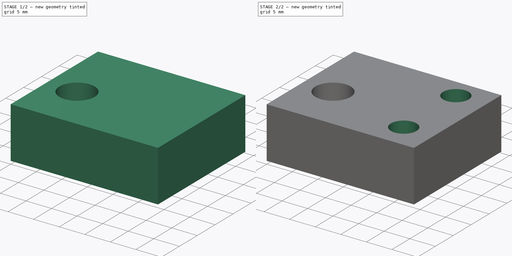
[diagram: build sequence overview — one tinted view per stage of 2, left to right]
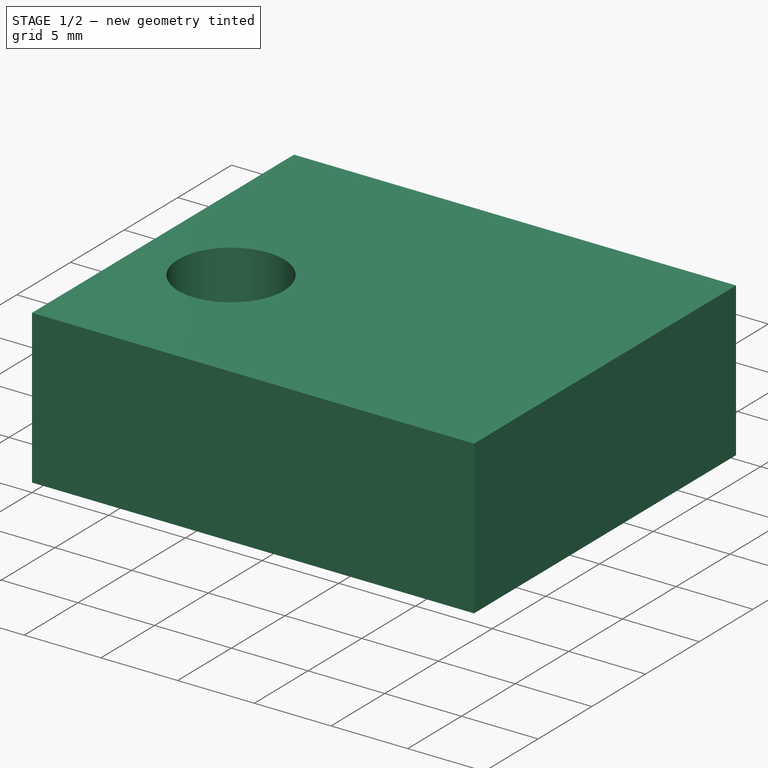
[diagram: stage 1 of 2 — iso view after this stage's code; geometry added in this stage tinted green]
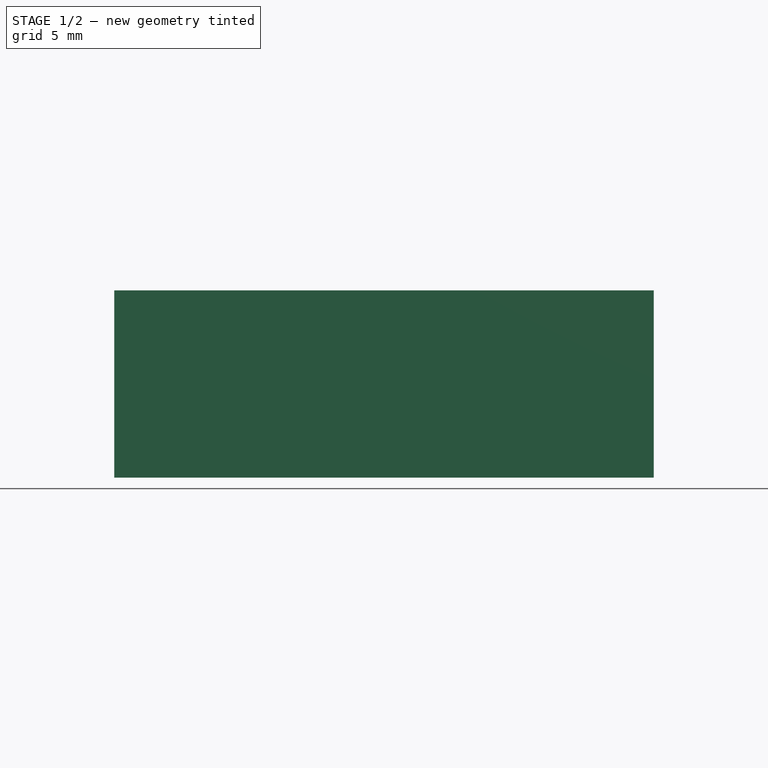
[diagram: stage 1 of 2 — front view after this stage's code; geometry added in this stage tinted green]
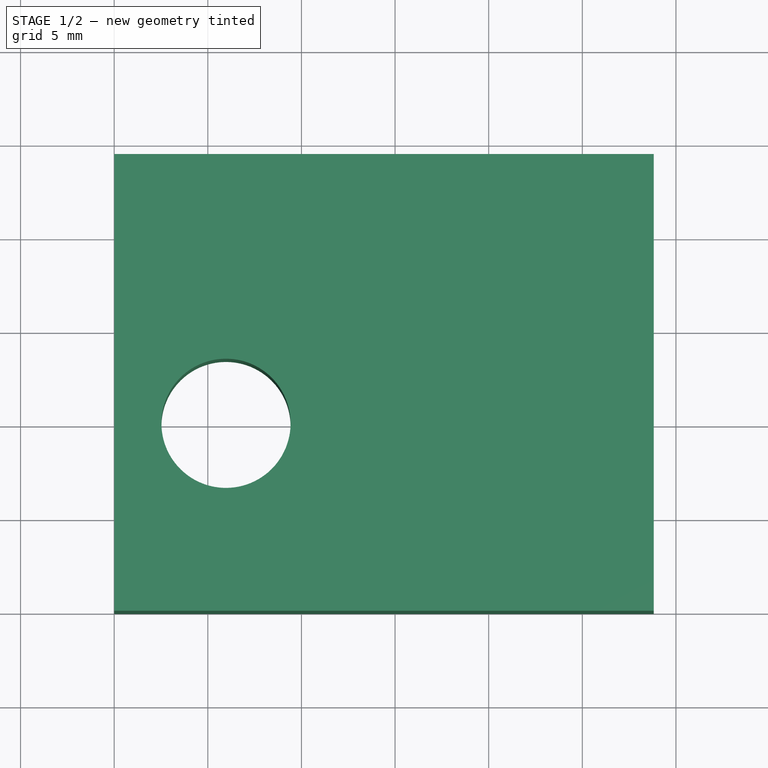
[diagram: stage 1 of 2 — top view after this stage's code; geometry added in this stage tinted green]
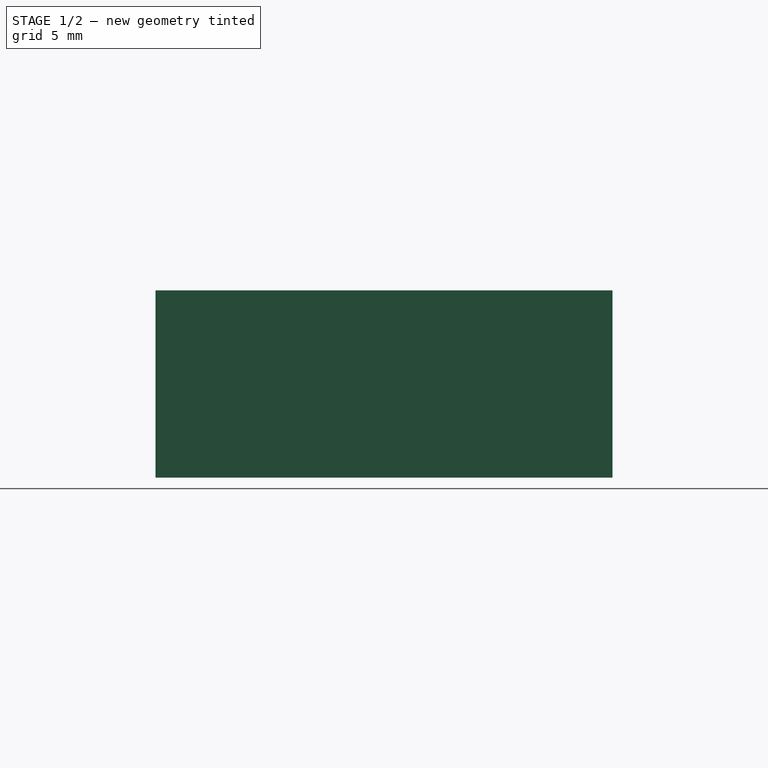
[diagram: stage 1 of 2 — right view after this stage's code; geometry added in this stage tinted green]
FCSTD DOCUMENT  (FreeCAD 0.20R29410 (Git))
Label: cube_2
License: All rights reserved
LicenseURL: http://en.wikipedia.org/wiki/All_rights_reserved
objects: App::FeaturePython×6, App::DocumentObjectGroupPython×5, Sketcher::SketchObject×3, PartDesign::Pocket×2, App::Part×1, PartDesign::Pad×1, PartDesign::Body×1
note: 10 computed .brp shape members not serialized (recipe doc carries the construction recipe); baked Part::Feature solids carry a one-line shape summary decoded from their .brp

FEATURE [App::Part] Part
  Origin = -> Origin
FEATURE [Sketcher::SketchObject] Sketch
  FullyConstrained = false
  MapMode = 5
  Support = -> [XY_Plane001]
  sketch-geometry (4):
    g0: LineSegment StartX=0 StartY=0 StartZ=0 EndX=28.8174 EndY=0 EndZ=0
    g1: LineSegment StartX=28.8174 StartY=0 StartZ=0 EndX=28.8174 EndY=24.4012 EndZ=0
    g2: LineSegment StartX=28.8174 StartY=24.4012 StartZ=0 EndX=0 EndY=24.4012 EndZ=0
    g3: LineSegment StartX=0 StartY=24.4012 StartZ=0 EndX=0 EndY=0 EndZ=0
  constraints (9):
    c: Coincident(g0,g1)
    c: Coincident(g1,g2)
    c: Coincident(g2,g3)
    c: Coincident(g3,g0)
    c: Horizontal(g0)
    c: Horizontal(g2)
    c: Vertical(g1)
    c: Vertical(g3)
    c: Coincident(g0,g-1)
FEATURE [PartDesign::Pad] Pad
  Direction = (0,0,1)
  Length = 10
  Length2 = 10
  Profile = -> Sketch
  ReferenceAxis = -> Sketch [N_Axis]
  Type = 0
FEATURE [Sketcher::SketchObject] Sketch001
  FullyConstrained = false
  MapMode = 5
  Support = -> [XY_Plane001]
  sketch-geometry (1):
    g0: Circle CenterX=5.97036 CenterY=10.014 CenterZ=0 NormalX=0 NormalY=0 NormalZ=1 AngleXU=0 Radius=3.44955
FEATURE [PartDesign::Pocket] Pocket
  BaseFeature = -> Pad
  Direction = (0,0,-1)
  Length = 5
  Length2 = 5
  Profile = -> Sketch001
  ReferenceAxis = -> Sketch001 [N_Axis]
  Reversed = true
  Type = 1
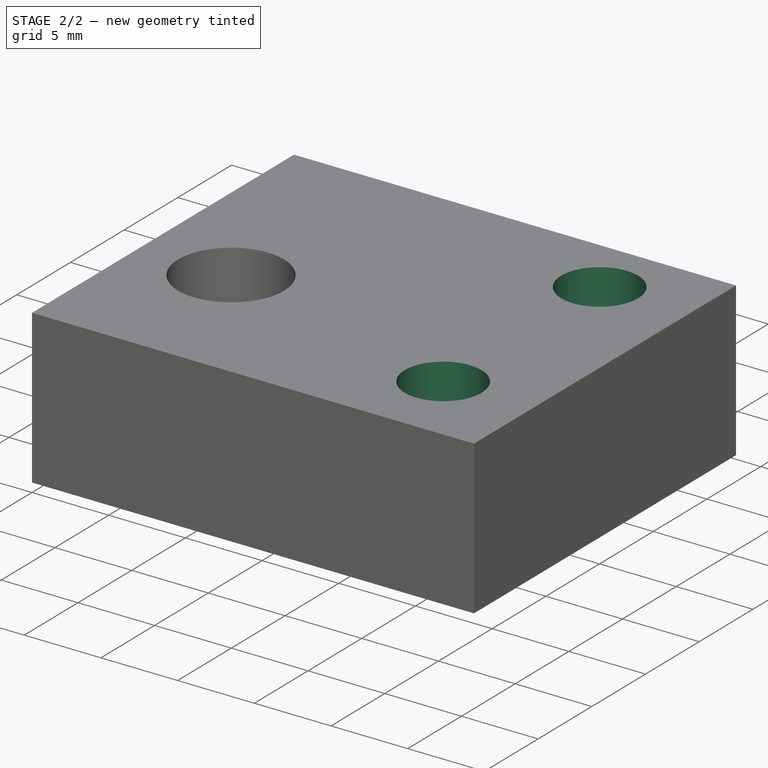
[diagram: stage 2 of 2 — iso view after this stage's code; geometry added in this stage tinted green]
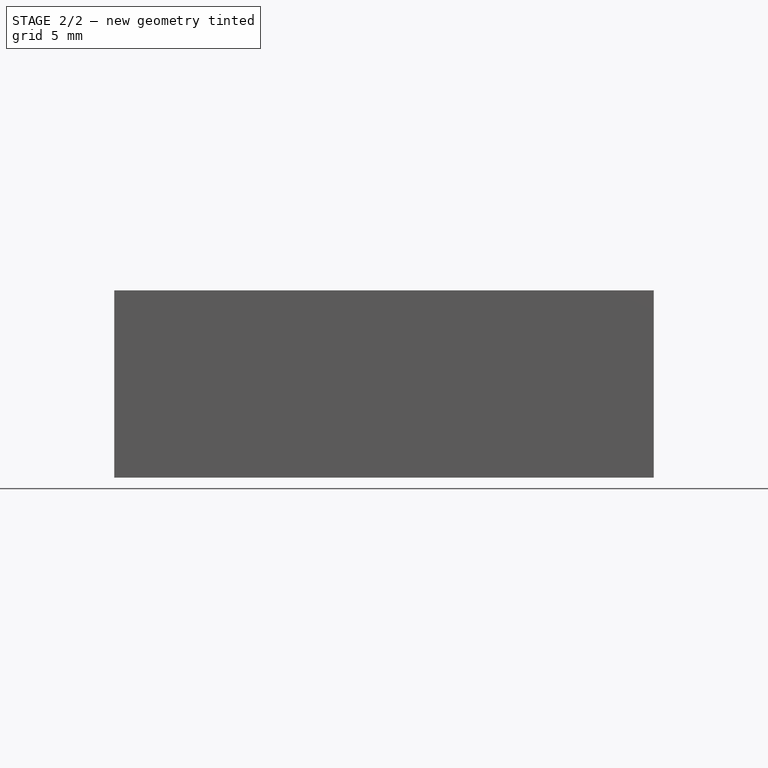
[diagram: stage 2 of 2 — front view after this stage's code; geometry added in this stage tinted green]
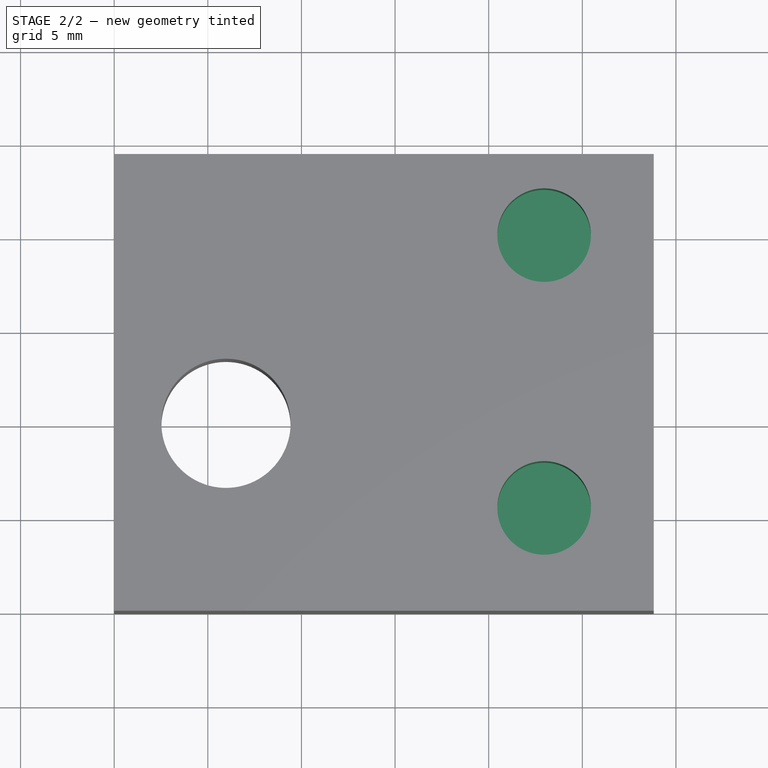
[diagram: stage 2 of 2 — top view after this stage's code; geometry added in this stage tinted green]
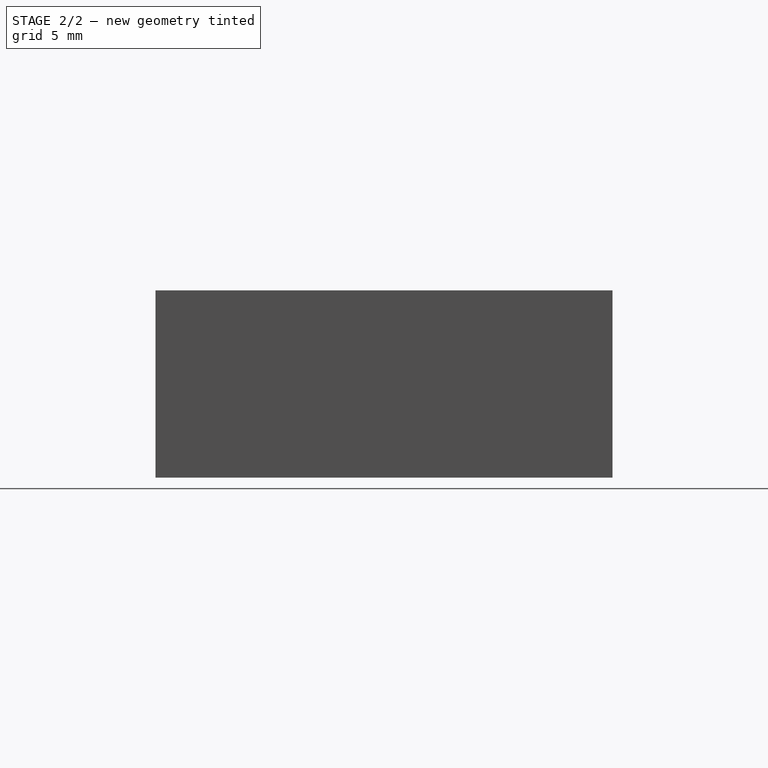
[diagram: stage 2 of 2 — right view after this stage's code; geometry added in this stage tinted green]
FEATURE [Sketcher::SketchObject] Sketch002
  FullyConstrained = false
  MapMode = 5
  Placement = pos=(0,0,10) rot=(0,0,1;0rad)
  Support = -> [Pocket]
  sketch-geometry (3):
    g0: Circle CenterX=22.9601 CenterY=5.49585 CenterZ=0 NormalX=0 NormalY=0 NormalZ=1 AngleXU=0 Radius=2.5
    g1: Circle CenterX=22.9601 CenterY=20.0674 CenterZ=0 NormalX=0 NormalY=0 NormalZ=1 AngleXU=0 Radius=2.5
    g2: LineSegment StartX=22.9601 StartY=5.49585 StartZ=0 EndX=22.9601 EndY=20.0674 EndZ=0
  constraints (5):
    c: Coincident(g2,g0)
    c: Coincident(g2,g1)
    c: Vertical(g2)
    c: Equal(g1,g0)
    c: Diameter(g1) = 5
FEATURE [PartDesign::Pocket] Pocket001
  BaseFeature = -> Pocket
  Direction = (0,0,-1)
  Length = 5
  Length2 = 5
  Profile = -> Sketch002
  ReferenceAxis = -> Sketch002 [N_Axis]
  Type = 0
FEATURE [PartDesign::Body] Body
  Group = -> [Sketch,Pad,Sketch001,Pocket,Sketch002,Pocket001]
  Origin = -> Origin001
  Tip = -> Pocket001
FEATURE [App::FeaturePython] AnnotationPlane  label="AP1"  # WARN: FeaturePython — macro-defined, semantics opaque (R4)
  Direction = (0,-1,0)
  Offset = -10
  PointWithOffset = (14.4087,10,5)
  faces = -> Pocket001 [Face1]
  p1 = (14.4087,0,5)
FEATURE [App::FeaturePython] DatumFeature  label="B"  # WARN: FeaturePython — macro-defined, semantics opaque (R4)
FEATURE [App::DocumentObjectGroupPython] Annotation1  # scripted group (container) (typed FeaturePython)
  AP = -> AnnotationPlane
  DF = -> DatumFeature
  Direction = (0,0,-1)
  circumferenceBool = false
  diameter = 0
  faces = -> [Pocket001]
  highLimit = 0
  lowLimit = 0
  p1 = (14.8825,10,0)
  selectedPoint = (14.4087,10,-12)
  spBool = true
  toleranceDiameter = 0
  toleranceSelectBool = true
FEATURE [App::FeaturePython] DatumSystem  label="DS1: A"  # WARN: FeaturePython — macro-defined, semantics opaque (R4)
  Primary = -> DatumFeature
FEATURE [App::FeaturePython] GeometricTolerance  label="GT1"  # WARN: FeaturePython — macro-defined, semantics opaque (R4)
  Characteristic = Position
  CharacteristicIcon = :/dd/icons/Characteristic/position.svg
  Circumference = false
  DS = -> DatumSystem
  FeatureControlFrame = Maximum material condition
  FeatureControlFrameIcon = :/dd/icons/FeatureControlFrame/maximumMaterialCondition.svg
  ToleranceValue = 0.05
FEATURE [App::FeaturePython] GeometricTolerance001  label="GT2"  # WARN: FeaturePython — macro-defined, semantics opaque (R4)
  Characteristic = Parallelism
  CharacteristicIcon = :/dd/icons/Characteristic/parallelism.svg
  Circumference = false
  DS = -> DatumSystem
  ToleranceValue = 0.05
FEATURE [App::DocumentObjectGroupPython] Annotation3  # scripted group (container) (typed FeaturePython)
  AP = -> AnnotationPlane
  Direction = (0,0,1)
  circumferenceBool = false
  diameter = 6.89909
  faces = -> [Pocket001]
  highLimit = 0
  lowLimit = 0
  p1 = (14.3762,10,10)
  selectedPoint = (19.4087,10,20)
  spBool = true
  toleranceDiameter = 0
  toleranceSelectBool = true
FEATURE [App::FeaturePython] GeometricTolerance002  label="GT3"  # WARN: FeaturePython — macro-defined, semantics opaque (R4)
  Characteristic = Profile of a line
  CharacteristicIcon = :/dd/icons/Characteristic/profileOfALine.svg
  Circumference = false
  DS = -> DatumSystem
  ToleranceValue = 0.05
FEATURE [App::DocumentObjectGroupPython] Annotation2  # scripted group (container) (typed FeaturePython)
  AP = -> AnnotationPlane
  Direction = (0,0,1)
  GT = -> [GeometricTolerance,GeometricTolerance001,GeometricTolerance002]
  Group = -> [GeometricTolerance,GeometricTolerance001,GeometricTolerance002]
  circumferenceBool = false
  diameter = 6.89909
  faces = -> [Pocket001]
  highLimit = 0
  lowLimit = 0
  p1 = (14.3762,10,10)
  selectedPoint = (14.4087,10,25)
  spBool = true
  toleranceDiameter = 0
  toleranceSelectBool = true
FEATURE [App::DocumentObjectGroupPython] Annotation4  # scripted group (container) (typed FeaturePython)
  AP = -> AnnotationPlane
  Direction = (0,0,1)
  circumferenceBool = false
  diameter = 6.89909
  faces = -> [Pocket001]
  highLimit = 0
  lowLimit = 0
  p1 = (14.3762,10,10)
  selectedPoint = (0,0,0)
  spBool = true
  toleranceDiameter = 0
  toleranceSelectBool = true
FEATURE [App::DocumentObjectGroupPython] GDT  # scripted group (container) (typed FeaturePython)
  Group = -> [Annotation1,DatumSystem,Annotation2,Annotation3,Annotation4]
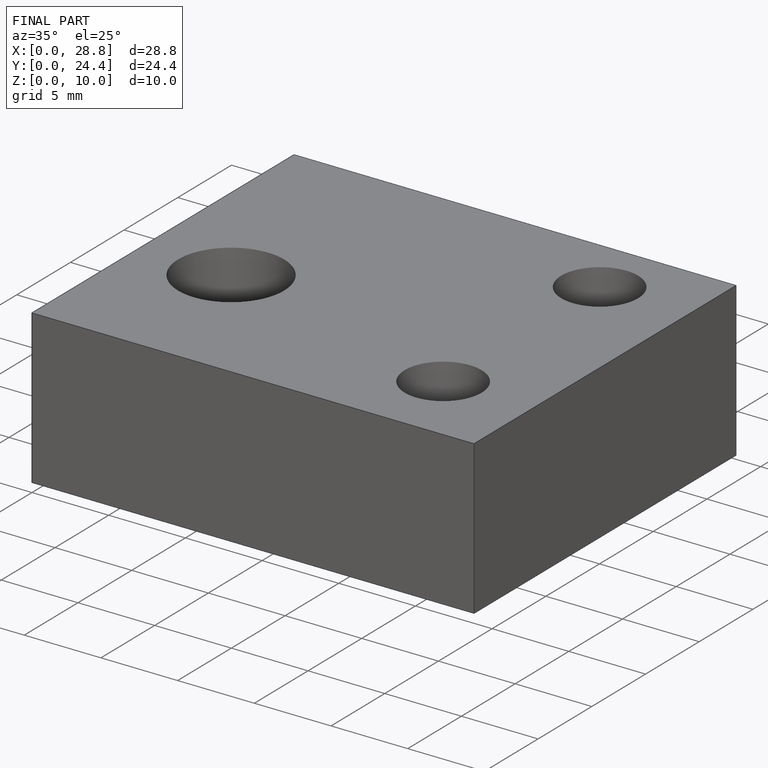
[diagram: finished part — iso view with bounding-box wireframe]
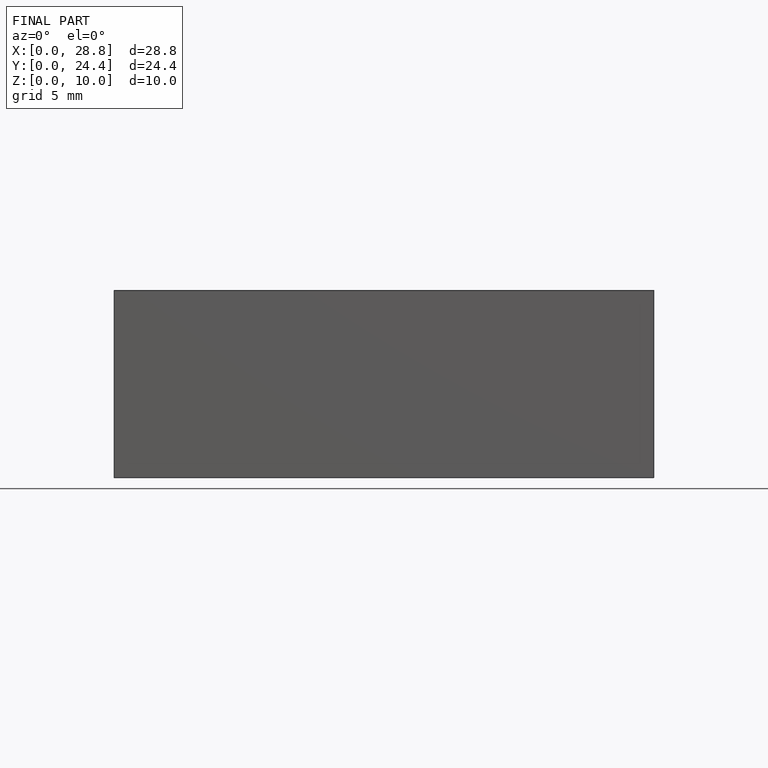
[diagram: finished part — front view with bounding-box wireframe]
